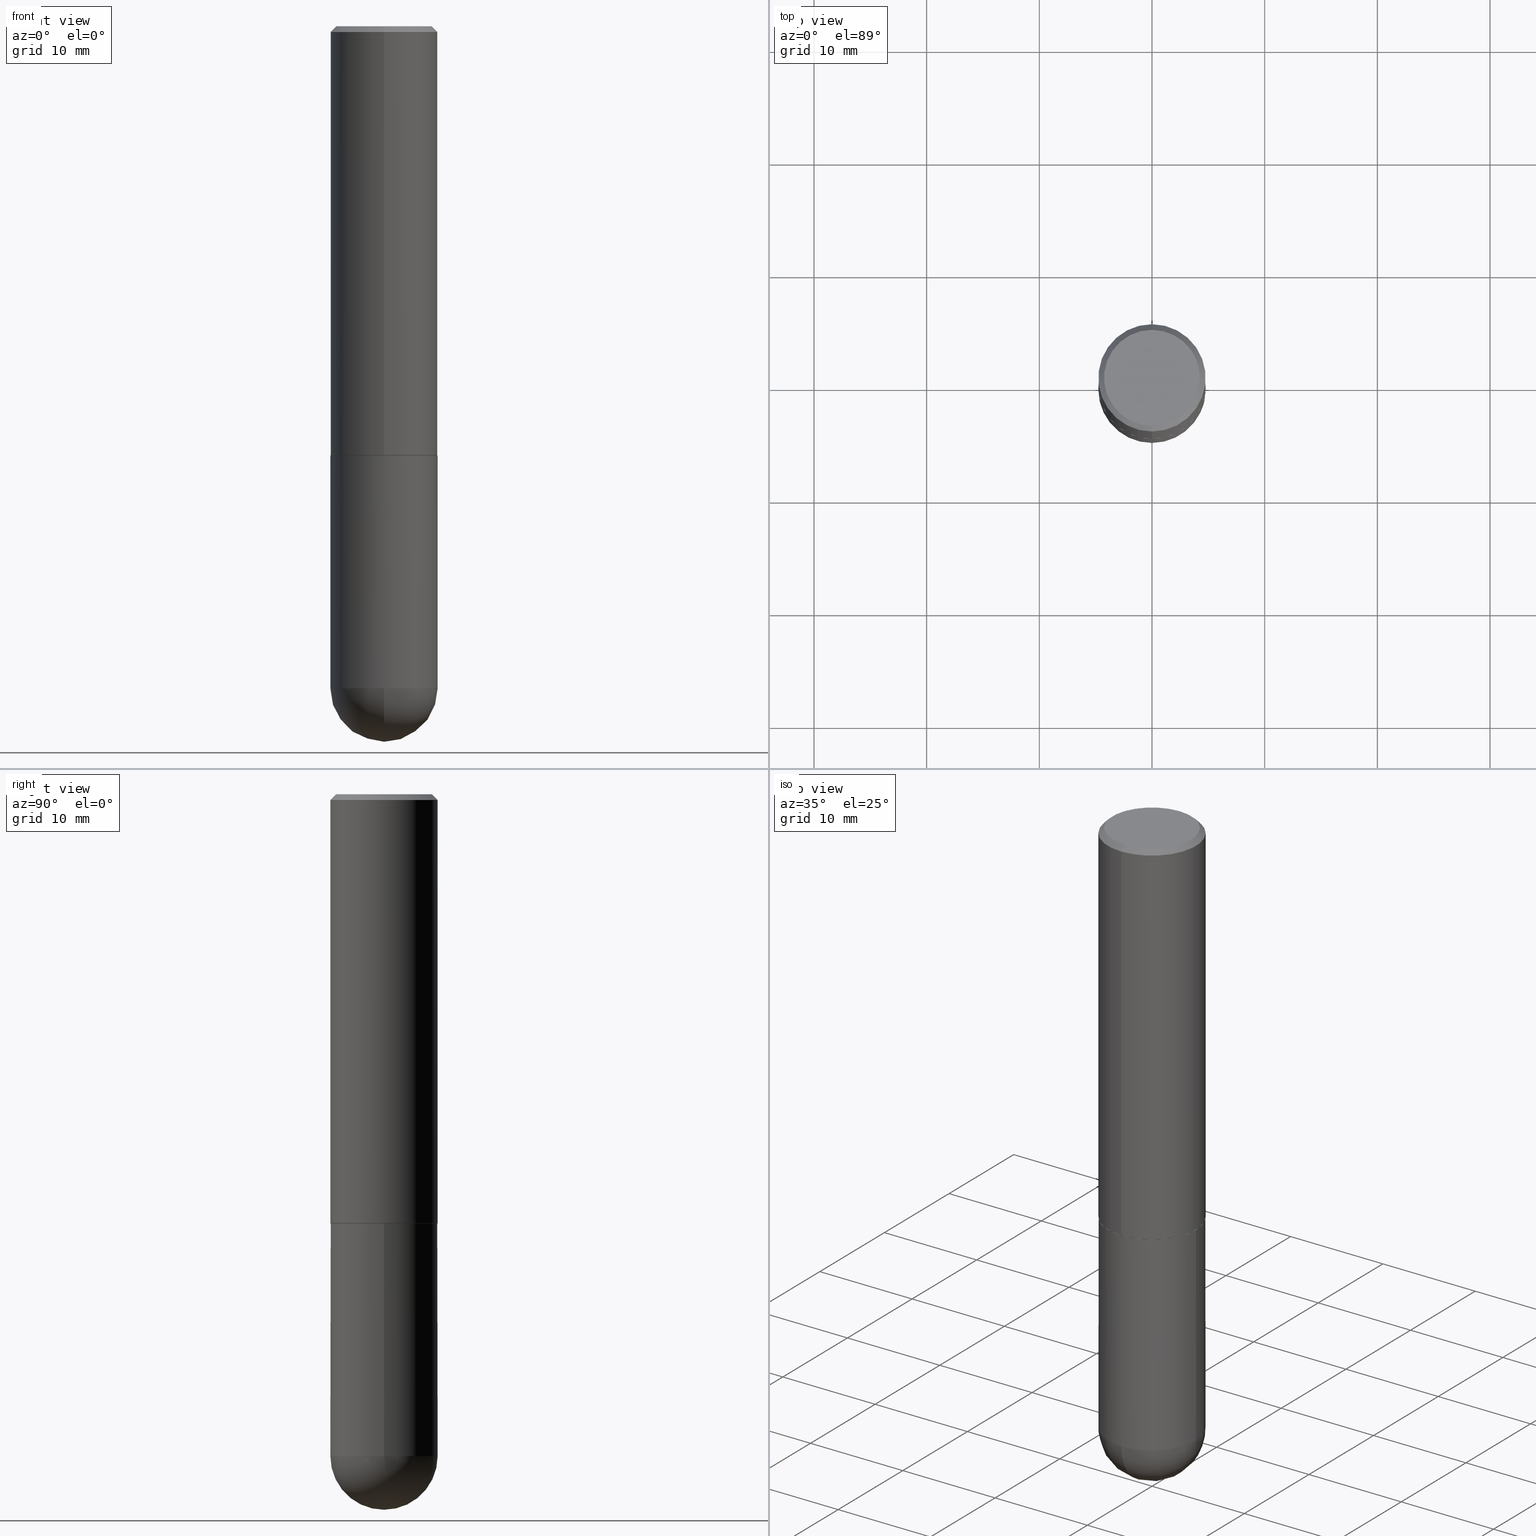
[diagram: canonical four-view strip — front | top / right | iso, engineering-drawing reading convention]
A machine part, canonical four-view strip (front | top / right | iso — engineering-drawing reading convention). The complete STEP part file that produces these views, byte-faithful:
ISO-10303-21;
HEADER;
FILE_DESCRIPTION (( 'STEP AP203' ),
    '1' );
FILE_NAME ('91289.STEP',
    '2024-04-10T12:36:36',
    ( '' ),
    ( '' ),
    'SwSTEP 2.0',
    'SolidWorks 2023',
    '' );
FILE_SCHEMA (( 'CONFIG_CONTROL_DESIGN' ));
ENDSEC;

DATA;
#1 = ORIENTED_EDGE ( 'NONE', *, *, #396, .F. ) ;
#2 = PRODUCT_DEFINITION_SHAPE ( 'NONE', 'NONE',  #55 ) ;
#3 = VERTEX_POINT ( 'NONE', #120 ) ;
#4 = DIRECTION ( 'NONE',  ( 2.446325823282040741E-29, -3.490254041581994604E-15, -1.000000000000000000 ) ) ;
#5 = AXIS2_PLACEMENT_3D ( 'NONE', #335, #275, #401 ) ;
#6 = APPROVAL_DATE_TIME ( #262, #304 ) ;
#7 = ORIENTED_EDGE ( 'NONE', *, *, #96, .F. ) ;
#8 = FACE_OUTER_BOUND ( 'NONE', #25, .T. ) ;
#9 = PRODUCT ( '91289', '91289', '', ( #23 ) ) ;
#10 = DATE_AND_TIME ( #289, #161 ) ;
#11 = EDGE_LOOP ( 'NONE', ( #286, #348, #318, #37, #40 ) ) ;
#12 = EDGE_CURVE ( 'NONE', #157, #142, #246, .T. ) ;
#13 = VECTOR ( 'NONE', #284, 39.37007874015748143 ) ;
#14 = FACE_OUTER_BOUND ( 'NONE', #386, .T. ) ;
#15 = DIRECTION ( 'NONE',  ( -6.982962677686265922E-15, -1.000000000000000000, 2.913971193241877611E-15 ) ) ;
#16 = FACE_OUTER_BOUND ( 'NONE', #186, .T. ) ;
#17 = CC_DESIGN_PERSON_AND_ORGANIZATION_ASSIGNMENT ( #156, #276, ( #314 ) ) ;
#18 = ORIENTED_EDGE ( 'NONE', *, *, #312, .F. ) ;
#19 = CARTESIAN_POINT ( 'NONE',  ( 5.655146614303128380E-29, -8.074050596074775072E-15, -2.312500000000000000 ) ) ;
#20 = VECTOR ( 'NONE', #256, 39.37007874015748143 ) ;
#21 = EDGE_CURVE ( 'NONE', #3, #230, #338, .T. ) ;
#22 = DIRECTION ( 'NONE',  ( -2.446325823282041021E-29, 3.490254041581994604E-15, 1.000000000000000000 ) ) ;
#23 = MECHANICAL_CONTEXT ( 'NONE', #405, 'mechanical' ) ;
#24 = SECURITY_CLASSIFICATION_LEVEL ( 'unclassified' ) ;
#25 = EDGE_LOOP ( 'NONE', ( #29, #45, #319, #261 ) ) ;
#26 = CARTESIAN_POINT ( 'NONE',  ( 0.000000000000000000, 0.000000000000000000, 0.000000000000000000 ) ) ;
#27 = DIRECTION ( 'NONE',  ( -2.446325823282041021E-29, 3.490254041581994604E-15, 1.000000000000000000 ) ) ;
#28 =( NAMED_UNIT ( * ) SI_UNIT ( $, .STERADIAN. ) SOLID_ANGLE_UNIT ( ) );
#29 = ORIENTED_EDGE ( 'NONE', *, *, #225, .F. ) ;
#30 = APPROVAL_DATE_TIME ( #149, #294 ) ;
#31 = CARTESIAN_POINT ( 'NONE',  ( 0.000000000000000000, 0.000000000000000000, 0.000000000000000000 ) ) ;
#32 = VERTEX_POINT ( 'NONE', #101 ) ;
#33 = AXIS2_PLACEMENT_3D ( 'NONE', #372, #89, #215 ) ;
#34 = EDGE_CURVE ( 'NONE', #230, #157, #331, .T. ) ;
#35 = ADVANCED_FACE ( 'NONE', ( #277 ), #376, .T. ) ;
#36 = EDGE_CURVE ( 'NONE', #78, #235, #169, .T. ) ;
#37 = ORIENTED_EDGE ( 'NONE', *, *, #266, .F. ) ;
#38 = PERSON ( 'UNSPECIFIED', 'UNSPECIFIED', 'UNSPECIFIED', ('UNSPECIFIED'), ('UNSPECIFIED'), ('UNSPECIFIED') ) ;
#39 = DIRECTION ( 'NONE',  ( -6.982962677686265922E-15, -1.000000000000000000, 2.929595703661408850E-15 ) ) ;
#40 = ORIENTED_EDGE ( 'NONE', *, *, #181, .T. ) ;
#41 = ORIENTED_EDGE ( 'NONE', *, *, #225, .T. ) ;
#42 = AXIS2_PLACEMENT_3D ( 'NONE', #121, #212, #366 ) ;
#43 = AXIS2_PLACEMENT_3D ( 'NONE', #99, #223, #211 ) ;
#44 = SHAPE_DEFINITION_REPRESENTATION ( #2, #184 ) ;
#45 = ORIENTED_EDGE ( 'NONE', *, *, #85, .T. ) ;
#46 = DIRECTION ( 'NONE',  ( -6.982962677686266711E-15, -1.000000000000000000, 3.483106191921935949E-15 ) ) ;
#47 = EDGE_CURVE ( 'NONE', #293, #97, #222, .T. ) ;
#48 = DIRECTION ( 'NONE',  ( -2.445468806185136597E-29, 3.491481338843145583E-15, 1.000000000000000000 ) ) ;
#49 = CARTESIAN_POINT ( 'NONE',  ( 1.169646248512449398E-15, 0.1674999999999999545, -5.740490568853542942E-16 ) ) ;
#50 = AXIS2_PLACEMENT_3D ( 'NONE', #191, #105, #206 ) ;
#51 = CONICAL_SURFACE ( 'NONE', #125, 0.1874999999999999722, 0.7853981633974473908 ) ;
#52 = DIRECTION ( 'NONE',  ( -2.446325823282041021E-29, 3.490254041581994604E-15, 1.000000000000000000 ) ) ;
#53 = MANIFOLD_SOLID_BREP ( 'Body-Move/Copy2[2]', #132 ) ;
#54 = MANIFOLD_SOLID_BREP ( 'Body-Move/Copy2[1]', #359 ) ;
#55 = PRODUCT_DEFINITION ( 'UNKNOWN', '', #148, #167 ) ;
#56 = CIRCLE ( 'NONE', #307, 0.1875000000000000555 ) ;
#57 = DIRECTION ( 'NONE',  ( -2.445468806185136877E-29, 3.491481338843145188E-15, 1.000000000000000000 ) ) ;
#58 = DIRECTION ( 'NONE',  ( 5.024295867787719235E-15, 0.7071067811865017205, 0.7071067811865933139 ) ) ;
#59 = EDGE_CURVE ( 'NONE', #230, #3, #320, .T. ) ;
#60 = PERSON_AND_ORGANIZATION ( #38, #116 ) ;
#61 = CARTESIAN_POINT ( 'NONE',  ( 0.000000000000000000, 0.000000000000000000, 0.000000000000000000 ) ) ;
#62 = DIRECTION ( 'NONE',  ( -6.982962677686266711E-15, -1.000000000000000000, 3.490254041581994210E-15 ) ) ;
#63 = DIRECTION ( 'NONE',  ( -6.982962677686266711E-15, -1.000000000000000000, 3.490254041581994210E-15 ) ) ;
#64 = VERTEX_POINT ( 'NONE', #302 ) ;
#65 = CIRCLE ( 'NONE', #119, 0.1674999999999999545 ) ;
#66 = CARTESIAN_POINT ( 'NONE',  ( -1.286343374582161379E-15, -0.1875000000000000555, -0.01999999999999938979 ) ) ;
#67 = COORDINATED_UNIVERSAL_TIME_OFFSET ( 5, 0, .BEHIND. ) ;
#68 = EDGE_LOOP ( 'NONE', ( #18, #258, #106, #109 ) ) ;
#69 = DIRECTION ( 'NONE',  ( -2.446325823282041021E-29, 3.490254041581994604E-15, 1.000000000000000000 ) ) ;
#70 = DIRECTION ( 'NONE',  ( 4.937700262164543309E-15, 0.7071067811865444641, -0.7071067811865506814 ) ) ;
#71 = CC_DESIGN_DATE_AND_TIME_ASSIGNMENT ( #10, #140, ( #314 ) ) ;
#72 = CARTESIAN_POINT ( 'NONE',  ( 0.1875000000000000555, -1.309305502066175205E-15, 9.142831454617382414E-30 ) ) ;
#73 = PERSON_AND_ORGANIZATION ( #38, #116 ) ;
#74 = ORIENTED_EDGE ( 'NONE', *, *, #96, .T. ) ;
#75 = CARTESIAN_POINT ( 'NONE',  ( -5.170796485305438754E-46, 7.377346533023360071E-32, 2.113699015925929127E-17 ) ) ;
#76 = VECTOR ( 'NONE', #70, 39.37007874015748143 ) ;
#77 = CARTESIAN_POINT ( 'NONE',  ( 4.892651646564092307E-31, -6.980508083164003605E-17, -0.02000000000000004205 ) ) ;
#78 = VERTEX_POINT ( 'NONE', #159 ) ;
#79 = ORIENTED_EDGE ( 'NONE', *, *, #181, .F. ) ;
#80 = DIRECTION ( 'NONE',  ( 6.982962677686266711E-15, 1.000000000000000000, -2.913971193241875639E-15 ) ) ;
#81 = EDGE_LOOP ( 'NONE', ( #7, #264, #288, #255 ) ) ;
#82 = AXIS2_PLACEMENT_3D ( 'NONE', #295, #252, #392 ) ;
#83 = CIRCLE ( 'NONE', #100, 0.1875000000000000555 ) ;
#84 = ORIENTED_EDGE ( 'NONE', *, *, #330, .T. ) ;
#85 = EDGE_CURVE ( 'NONE', #32, #235, #337, .T. ) ;
#86 = CC_DESIGN_PERSON_AND_ORGANIZATION_ASSIGNMENT ( #60, #127, ( #148 ) ) ;
#87 = CARTESIAN_POINT ( 'NONE',  ( -1.309305502066139509E-15, -0.1875000000000054123, -1.498999999999999444 ) ) ;
#88 = APPROVAL_ROLE ( '' ) ;
#89 = DIRECTION ( 'NONE',  ( -2.446325823282041021E-29, 3.490254041581994604E-15, 1.000000000000000000 ) ) ;
#90 = CC_DESIGN_APPROVAL ( #253, ( #148 ) ) ;
#91 = CARTESIAN_POINT ( 'NONE',  ( -0.1875000000000000555, 1.332267629550188243E-15, -9.223003294227950793E-30 ) ) ;
#92 = DIRECTION ( 'NONE',  ( -6.982962677686265922E-15, -1.000000000000000000, 2.929595703661408850E-15 ) ) ;
#93 = CARTESIAN_POINT ( 'NONE',  ( 5.324026836389243254E-29, -8.548232964214825368E-15, -2.312500000000000000 ) ) ;
#94 = DATE_TIME_ROLE ( 'creation_date' ) ;
#95 = DIRECTION ( 'NONE',  ( -6.982962677686265922E-15, -1.000000000000000000, 2.929595703661408850E-15 ) ) ;
#96 = EDGE_CURVE ( 'NONE', #3, #142, #282, .T. ) ;
#97 = VERTEX_POINT ( 'NONE', #224 ) ;
#98 = CARTESIAN_POINT ( 'NONE',  ( 1.309305502066175205E-15, 0.1874999999999999167, -0.02000000000000069431 ) ) ;
#99 = CARTESIAN_POINT ( 'NONE',  ( 0.000000000000000000, 0.000000000000000000, 0.000000000000000000 ) ) ;
#100 = AXIS2_PLACEMENT_3D ( 'NONE', #317, #48, #242 ) ;
#101 = CARTESIAN_POINT ( 'NONE',  ( -1.217738394604446442E-15, -0.1674999999999999545, 6.057545421242431695E-16 ) ) ;
#102 = EDGE_CURVE ( 'NONE', #361, #32, #259, .T. ) ;
#103 = DIRECTION ( 'NONE',  ( -2.445468806185136597E-29, 3.491481338843145583E-15, 1.000000000000000000 ) ) ;
#104 = ORIENTED_EDGE ( 'NONE', *, *, #345, .T. ) ;
#105 = DIRECTION ( 'NONE',  ( -2.445468806185136597E-29, 3.491481338843145583E-15, 1.000000000000000000 ) ) ;
#106 = ORIENTED_EDGE ( 'NONE', *, *, #143, .T. ) ;
#107 = AXIS2_PLACEMENT_3D ( 'NONE', #357, #352, #80 ) ;
#108 = AXIS2_PLACEMENT_3D ( 'NONE', #93, #216, #154 ) ;
#109 = ORIENTED_EDGE ( 'NONE', *, *, #36, .F. ) ;
#110 = ORIENTED_EDGE ( 'NONE', *, *, #102, .T. ) ;
#111 = APPLICATION_CONTEXT ( 'configuration controlled 3d designs of mechanical parts and assemblies' ) ;
#112 = DIRECTION ( 'NONE',  ( 6.982962677686266711E-15, 1.000000000000000000, -3.483106191921935949E-15 ) ) ;
#113 = ADVANCED_FACE ( 'NONE', ( #130 ), #265, .T. ) ;
#114 = ORIENTED_EDGE ( 'NONE', *, *, #312, .T. ) ;
#115 = VECTOR ( 'NONE', #248, 39.37007874015748143 ) ;
#116 = ORGANIZATION ( 'UNSPECIFIED', 'UNSPECIFIED', '' ) ;
#117 = FACE_OUTER_BOUND ( 'NONE', #232, .T. ) ;
#118 = CYLINDRICAL_SURFACE ( 'NONE', #208, 0.1875000000000000833 ) ;
#119 = AXIS2_PLACEMENT_3D ( 'NONE', #75, #324, #173 ) ;
#120 = CARTESIAN_POINT ( 'NONE',  ( 1.328714915871423829E-15, 0.1864999999999947533, -1.500000000000000888 ) ) ;
#121 = CARTESIAN_POINT ( 'NONE',  ( 3.668203209277704895E-29, -5.237222008264718177E-15, -1.500000000000000222 ) ) ;
#122 = APPROVAL_DATE_TIME ( #249, #253 ) ;
#123 = CARTESIAN_POINT ( 'NONE',  ( 1.309305502066231017E-15, 0.1874999999999918954, -2.312500000000000444 ) ) ;
#124 = ADVANCED_FACE ( 'NONE', ( #398 ), #245, .T. ) ;
#125 = AXIS2_PLACEMENT_3D ( 'NONE', #77, #387, #112 ) ;
#126 = APPLICATION_PROTOCOL_DEFINITION ( 'international standard', 'config_control_design', 1994, #111 ) ;
#127 = PERSON_AND_ORGANIZATION_ROLE ( 'design_supplier' ) ;
#128 = FACE_OUTER_BOUND ( 'NONE', #163, .T. ) ;
#129 = LENGTH_MEASURE_WITH_UNIT ( LENGTH_MEASURE( 0.02539999999999999897 ), #152 );
#130 = FACE_OUTER_BOUND ( 'NONE', #194, .T. ) ;
#131 = PLANE ( 'NONE',  #236 ) ;
#132 = CLOSED_SHELL ( 'NONE', ( #113, #300, #323, #234, #35, #204, #172, #195 ) ) ;
#133 = CONICAL_SURFACE ( 'NONE', #360, 0.1864999999999999714, 0.7853981633973801113 ) ;
#134 = ORIENTED_EDGE ( 'NONE', *, *, #280, .F. ) ;
#135 = CARTESIAN_POINT ( 'NONE',  ( 3.669488734923062093E-29, -5.235381062372993089E-15, -1.500000000000000444 ) ) ;
#136 = ORIENTED_EDGE ( 'NONE', *, *, #12, .F. ) ;
#137 = ORIENTED_EDGE ( 'NONE', *, *, #367, .T. ) ;
#138 = CC_DESIGN_PERSON_AND_ORGANIZATION_ASSIGNMENT ( #247, #188, ( #55 ) ) ;
#139 = LOCAL_TIME ( 8, 36, 36.00000000000000000, #67 ) ;
#140 = DATE_TIME_ROLE ( 'classification_date' ) ;
#141 = EDGE_LOOP ( 'NONE', ( #171, #342 ) ) ;
#142 = VERTEX_POINT ( 'NONE', #187 ) ;
#143 = EDGE_CURVE ( 'NONE', #157, #235, #406, .T. ) ;
#144 = AXIS2_PLACEMENT_3D ( 'NONE', #231, #52, #146 ) ;
#145 = CARTESIAN_POINT ( 'NONE',  ( 5.655146614303128380E-29, -8.074050596074775072E-15, -2.312500000000000000 ) ) ;
#146 = DIRECTION ( 'NONE',  ( -6.982962677686265922E-15, -1.000000000000000000, 2.913971193241877611E-15 ) ) ;
#147 = CARTESIAN_POINT ( 'NONE',  ( 5.324026836389243254E-29, -8.548232964214825368E-15, -2.312500000000000000 ) ) ;
#148 = PRODUCT_DEFINITION_FORMATION_WITH_SPECIFIED_SOURCE ( 'ANY', '', #9, .NOT_KNOWN. ) ;
#149 = DATE_AND_TIME ( #217, #299 ) ;
#150 = DIRECTION ( 'NONE',  ( -6.982962677686265922E-15, -1.000000000000000000, 2.929595703661408850E-15 ) ) ;
#151 = ADVANCED_FACE ( 'NONE', ( #343 ), #306, .T. ) ;
#152 =( LENGTH_UNIT ( ) NAMED_UNIT ( * ) SI_UNIT ( $, .METRE. ) );
#153 = CARTESIAN_POINT ( 'NONE',  ( -1.309305502066175600E-15, -0.1875000000000000833, 6.544226327966242348E-16 ) ) ;
#154 = DIRECTION ( 'NONE',  ( 6.982962677686265922E-15, 1.000000000000000000, 0.000000000000000000 ) ) ;
#155 = APPROVAL_PERSON_ORGANIZATION ( #73, #304, #162 ) ;
#156 = PERSON_AND_ORGANIZATION ( #38, #116 ) ;
#157 = VERTEX_POINT ( 'NONE', #87 ) ;
#158 = DIRECTION ( 'NONE',  ( -2.446325823282041021E-29, 3.490254041581994604E-15, 1.000000000000000000 ) ) ;
#159 = CARTESIAN_POINT ( 'NONE',  ( 1.309305502066175205E-15, 0.1874999999999999167, -0.02000000000000069431 ) ) ;
#160 = AXIS2_PLACEMENT_3D ( 'NONE', #309, #218, #179 ) ;
#161 = LOCAL_TIME ( 8, 36, 36.00000000000000000, #336 ) ;
#162 = APPROVAL_ROLE ( '' ) ;
#163 = EDGE_LOOP ( 'NONE', ( #380, #196 ) ) ;
#164 = FACE_OUTER_BOUND ( 'NONE', #141, .T. ) ;
#165 = ORIENTED_EDGE ( 'NONE', *, *, #330, .F. ) ;
#166 = ORIENTED_EDGE ( 'NONE', *, *, #389, .F. ) ;
#167 = DESIGN_CONTEXT ( 'detailed design', #111, 'design' ) ;
#168 = ORIENTED_EDGE ( 'NONE', *, *, #353, .T. ) ;
#169 = CIRCLE ( 'NONE', #160, 0.1874999999999999722 ) ;
#170 = CC_DESIGN_SECURITY_CLASSIFICATION ( #314, ( #148 ) ) ;
#171 = ORIENTED_EDGE ( 'NONE', *, *, #59, .F. ) ;
#172 = ADVANCED_FACE ( 'NONE', ( #164 ), #382, .F. ) ;
#173 = DIRECTION ( 'NONE',  ( -6.982962677686266711E-15, -1.000000000000000000, 3.490254041581994210E-15 ) ) ;
#174 = APPROVAL_PERSON_ORGANIZATION ( #310, #253, #88 ) ;
#175 = SPHERICAL_SURFACE ( 'NONE', #291, 0.1875000000000003331 ) ;
#176 = CARTESIAN_POINT ( 'NONE',  ( 0.1875000000000000278, -6.546527510330893974E-15, -1.500000000000000222 ) ) ;
#177 = LINE ( 'NONE', #72, #20 ) ;
#178 = DIRECTION ( 'NONE',  ( -1.000000000000000000, 6.982962677686266711E-15, -4.883557194083113462E-29 ) ) ;
#179 = DIRECTION ( 'NONE',  ( -6.982962677686266711E-15, -1.000000000000000000, 3.483106191921935949E-15 ) ) ;
#180 = FACE_OUTER_BOUND ( 'NONE', #199, .T. ) ;
#181 = EDGE_CURVE ( 'NONE', #410, #290, #228, .T. ) ;
#182 =( NAMED_UNIT ( * ) PLANE_ANGLE_UNIT ( ) SI_UNIT ( $, .RADIAN. ) );
#183 = DIRECTION ( 'NONE',  ( -2.445468806185136597E-29, 3.491481338843145583E-15, 1.000000000000000000 ) ) ;
#184 = ADVANCED_BREP_SHAPE_REPRESENTATION ( '91289', ( #54, #53, #43 ), #285 ) ;
#185 = COORDINATED_UNIVERSAL_TIME_OFFSET ( 5, 0, .BEHIND. ) ;
#186 = EDGE_LOOP ( 'NONE', ( #189, #114, #1, #263 ) ) ;
#187 = CARTESIAN_POINT ( 'NONE',  ( 1.332267629550206781E-15, 0.1874999999999949485, -1.499000000000000554 ) ) ;
#188 = PERSON_AND_ORGANIZATION_ROLE ( 'creator' ) ;
#189 = ORIENTED_EDGE ( 'NONE', *, *, #12, .T. ) ;
#190 = DIRECTION ( 'NONE',  ( 2.438088387897960049E-29, -3.491481338843145188E-15, -1.000000000000000000 ) ) ;
#191 = CARTESIAN_POINT ( 'NONE',  ( 5.655146614303128380E-29, -8.074050596074775072E-15, -2.312500000000000000 ) ) ;
#192 = AXIS2_PLACEMENT_3D ( 'NONE', #272, #158, #92 ) ;
#193 = CIRCLE ( 'NONE', #326, 0.1874999999999999722 ) ;
#194 = EDGE_LOOP ( 'NONE', ( #315, #74, #136, #203 ) ) ;
#195 = ADVANCED_FACE ( 'NONE', ( #117 ), #316, .F. ) ;
#196 = ORIENTED_EDGE ( 'NONE', *, *, #280, .T. ) ;
#197 = ADVANCED_FACE ( 'NONE', ( #227 ), #238, .T. ) ;
#198 = ORIENTED_EDGE ( 'NONE', *, *, #36, .T. ) ;
#199 = EDGE_LOOP ( 'NONE', ( #226, #381, #79, #292 ) ) ;
#200 = VECTOR ( 'NONE', #271, 39.37007874015748143 ) ;
#201 = DIRECTION ( 'NONE',  ( -2.446325823282041021E-29, 3.490254041581994604E-15, 1.000000000000000000 ) ) ;
#202 = CIRCLE ( 'NONE', #5, 0.1875000000000000278 ) ;
#203 = ORIENTED_EDGE ( 'NONE', *, *, #34, .F. ) ;
#204 = ADVANCED_FACE ( 'NONE', ( #349 ), #133, .T. ) ;
#205 = DIRECTION ( 'NONE',  ( -2.446325823282041021E-29, 3.490254041581994604E-15, 1.000000000000000000 ) ) ;
#206 = DIRECTION ( 'NONE',  ( 1.000000000000000000, -6.982962677686270655E-15, 0.000000000000000000 ) ) ;
#207 = VECTOR ( 'NONE', #58, 39.37007874015748143 ) ;
#208 = AXIS2_PLACEMENT_3D ( 'NONE', #287, #27, #62 ) ;
#209 = EDGE_CURVE ( 'NONE', #142, #157, #378, .T. ) ;
#210 = CC_DESIGN_DATE_AND_TIME_ASSIGNMENT ( #371, #94, ( #55 ) ) ;
#211 = DIRECTION ( 'NONE',  ( 1.000000000000000000, 0.000000000000000000, 0.000000000000000000 ) ) ;
#212 = DIRECTION ( 'NONE',  ( -2.445468806185136597E-29, 3.491481338843145583E-15, 1.000000000000000000 ) ) ;
#213 = CARTESIAN_POINT ( 'NONE',  ( 5.324026836389243254E-29, -8.548232964214825368E-15, -2.312500000000000000 ) ) ;
#214 = CIRCLE ( 'NONE', #108, 0.1875000000000003331 ) ;
#215 = DIRECTION ( 'NONE',  ( -6.982962677686266711E-15, -1.000000000000000000, 3.490254041581994210E-15 ) ) ;
#216 = DIRECTION ( 'NONE',  ( 1.000000000000000000, -6.982962677686265922E-15, 4.883557194083112340E-29 ) ) ;
#217 = CALENDAR_DATE ( 2024, 10, 4 ) ;
#218 = DIRECTION ( 'NONE',  ( -2.446325823282041021E-29, 3.490254041581994604E-15, 1.000000000000000000 ) ) ;
#219 = PERSON_AND_ORGANIZATION ( #38, #116 ) ;
#220 = ORIENTED_EDGE ( 'NONE', *, *, #283, .F. ) ;
#221 = CARTESIAN_POINT ( 'NONE',  ( 3.669488734923062093E-29, -5.235381062372993089E-15, -1.500000000000000444 ) ) ;
#222 = CIRCLE ( 'NONE', #42, 0.1875000000000000278 ) ;
#223 = DIRECTION ( 'NONE',  ( 0.000000000000000000, 0.000000000000000000, 1.000000000000000000 ) ) ;
#224 = CARTESIAN_POINT ( 'NONE',  ( -0.1875000000000000278, -5.323368672619557593E-15, -1.500000000000000222 ) ) ;
#225 = EDGE_CURVE ( 'NONE', #32, #361, #65, .T. ) ;
#226 = ORIENTED_EDGE ( 'NONE', *, *, #353, .F. ) ;
#227 = FACE_OUTER_BOUND ( 'NONE', #233, .T. ) ;
#228 = CIRCLE ( 'NONE', #50, 0.1875000000000000555 ) ;
#229 = CC_DESIGN_APPROVAL ( #304, ( #314 ) ) ;
#230 = VERTEX_POINT ( 'NONE', #411 ) ;
#231 = CARTESIAN_POINT ( 'NONE',  ( 3.667042409099778861E-29, -5.231890808331411425E-15, -1.499000000000000110 ) ) ;
#232 = EDGE_LOOP ( 'NONE', ( #110, #41 ) ) ;
#233 = EDGE_LOOP ( 'NONE', ( #166, #168, #165, #220 ) ) ;
#234 = ADVANCED_FACE ( 'NONE', ( #14 ), #409, .T. ) ;
#235 = VERTEX_POINT ( 'NONE', #325 ) ;
#236 = AXIS2_PLACEMENT_3D ( 'NONE', #340, #190, #251 ) ;
#237 = DIRECTION ( 'NONE',  ( 6.982962677686266711E-15, 1.000000000000000000, -2.913971193241875639E-15 ) ) ;
#238 = SPHERICAL_SURFACE ( 'NONE', #107, 0.1875000000000003331 ) ;
#239 = CC_DESIGN_PERSON_AND_ORGANIZATION_ASSIGNMENT ( #365, #308, ( #9 ) ) ;
#240 = DIRECTION ( 'NONE',  ( -2.445468806185136597E-29, 3.491481338843145583E-15, 1.000000000000000000 ) ) ;
#241 = CIRCLE ( 'NONE', #339, 0.1875000000000003331 ) ;
#242 = DIRECTION ( 'NONE',  ( 1.000000000000000000, -6.982962677686270655E-15, 0.000000000000000000 ) ) ;
#243 = CARTESIAN_POINT ( 'NONE',  ( 3.667042409099778861E-29, -5.231890808331411425E-15, -1.499000000000000110 ) ) ;
#244 = PRODUCT_RELATED_PRODUCT_CATEGORY ( 'detail', '', ( #9 ) ) ;
#245 = CYLINDRICAL_SURFACE ( 'NONE', #298, 0.1875000000000000555 ) ;
#246 = CIRCLE ( 'NONE', #377, 0.1875000000000001943 ) ;
#247 = PERSON_AND_ORGANIZATION ( #38, #116 ) ;
#248 = DIRECTION ( 'NONE',  ( -4.937700262164211199E-15, -0.7071067811864968355, 0.7071067811865981989 ) ) ;
#249 = DATE_AND_TIME ( #305, #400 ) ;
#250 = DIRECTION ( 'NONE',  ( -2.446325823282041302E-29, 3.490254041581994604E-15, 1.000000000000000000 ) ) ;
#251 = DIRECTION ( 'NONE',  ( -1.000000000000000000, 6.982962677686265922E-15, -4.876176775795935793E-29 ) ) ;
#252 = DIRECTION ( 'NONE',  ( -2.446325823282040741E-29, 3.490254041581994604E-15, 1.000000000000000000 ) ) ;
#253 = APPROVAL ( #332, 'UNSPECIFIED' ) ;
#254 = DIMENSIONAL_EXPONENTS ( 1.000000000000000000, 0.000000000000000000, 0.000000000000000000, 0.000000000000000000, 0.000000000000000000, 0.000000000000000000, 0.000000000000000000 ) ;
#255 = ORIENTED_EDGE ( 'NONE', *, *, #209, .F. ) ;
#256 = DIRECTION ( 'NONE',  ( -2.445468806185136877E-29, 3.491481338843145188E-15, 1.000000000000000000 ) ) ;
#257 = COORDINATED_UNIVERSAL_TIME_OFFSET ( 5, 0, .BEHIND. ) ;
#258 = ORIENTED_EDGE ( 'NONE', *, *, #209, .T. ) ;
#259 = CIRCLE ( 'NONE', #33, 0.1674999999999999545 ) ;
#260 = LOCAL_TIME ( 8, 36, 36.00000000000000000, #257 ) ;
#261 = ORIENTED_EDGE ( 'NONE', *, *, #367, .F. ) ;
#262 = DATE_AND_TIME ( #355, #260 ) ;
#263 = ORIENTED_EDGE ( 'NONE', *, *, #143, .F. ) ;
#264 = ORIENTED_EDGE ( 'NONE', *, *, #21, .T. ) ;
#265 = CONICAL_SURFACE ( 'NONE', #383, 0.1864999999999999714, 0.7853981633973801113 ) ;
#266 = EDGE_CURVE ( 'NONE', #410, #293, #177, .T. ) ;
#267 = CARTESIAN_POINT ( 'NONE',  ( 4.892651646564092307E-31, -6.980508083164003605E-17, -0.02000000000000004205 ) ) ;
#268 = DIRECTION ( 'NONE',  ( -7.105427357600999492E-15, -1.000000000000000000, 0.000000000000000000 ) ) ;
#269 = AXIS2_PLACEMENT_3D ( 'NONE', #221, #69, #95 ) ;
#270 = CIRCLE ( 'NONE', #369, 0.1875000000000000555 ) ;
#271 = DIRECTION ( 'NONE',  ( -4.851104656540959542E-15, -0.7071067811865493491, -0.7071067811865457964 ) ) ;
#272 = CARTESIAN_POINT ( 'NONE',  ( 3.669488734923062093E-29, -5.235381062372993089E-15, -1.500000000000000444 ) ) ;
#273 = CARTESIAN_POINT ( 'NONE',  ( 4.892651646564092307E-31, -6.980508083164003605E-17, -0.02000000000000004205 ) ) ;
#274 = AXIS2_PLACEMENT_3D ( 'NONE', #49, #4, #346 ) ;
#275 = DIRECTION ( 'NONE',  ( -2.445468806185136597E-29, 3.491481338843145583E-15, 1.000000000000000000 ) ) ;
#276 = PERSON_AND_ORGANIZATION_ROLE ( 'classification_officer' ) ;
#277 = FACE_OUTER_BOUND ( 'NONE', #68, .T. ) ;
#278 = APPLICATION_PROTOCOL_DEFINITION ( 'international standard', 'config_control_design', 1994, #405 ) ;
#279 = CARTESIAN_POINT ( 'NONE',  ( 3.669488734923062093E-29, -5.235381062372993089E-15, -1.500000000000000444 ) ) ;
#280 = EDGE_CURVE ( 'NONE', #97, #293, #202, .T. ) ;
#281 = VERTEX_POINT ( 'NONE', #354 ) ;
#282 = LINE ( 'NONE', #403, #207 ) ;
#283 = EDGE_CURVE ( 'NONE', #290, #64, #270, .T. ) ;
#284 = DIRECTION ( 'NONE',  ( -2.446325823282041302E-29, 3.490254041581994604E-15, 1.000000000000000000 ) ) ;
#285 =( GEOMETRIC_REPRESENTATION_CONTEXT ( 3 ) GLOBAL_UNCERTAINTY_ASSIGNED_CONTEXT ( ( #375 ) ) GLOBAL_UNIT_ASSIGNED_CONTEXT ( ( #341, #182, #28 ) ) REPRESENTATION_CONTEXT ( 'NONE', 'WORKASPACE' ) );
#286 = ORIENTED_EDGE ( 'NONE', *, *, #283, .T. ) ;
#287 = CARTESIAN_POINT ( 'NONE',  ( 0.000000000000000000, 0.000000000000000000, 0.000000000000000000 ) ) ;
#288 = ORIENTED_EDGE ( 'NONE', *, *, #34, .T. ) ;
#289 = CALENDAR_DATE ( 2024, 10, 4 ) ;
#290 = VERTEX_POINT ( 'NONE', #123 ) ;
#291 = AXIS2_PLACEMENT_3D ( 'NONE', #213, #178, #237 ) ;
#292 = ORIENTED_EDGE ( 'NONE', *, *, #345, .F. ) ;
#293 = VERTEX_POINT ( 'NONE', #176 ) ;
#294 = APPROVAL ( #373, 'UNSPECIFIED' ) ;
#295 = CARTESIAN_POINT ( 'NONE',  ( 3.669488734923062093E-29, -5.235381062372993089E-15, -1.500000000000000444 ) ) ;
#296 = CC_DESIGN_APPROVAL ( #294, ( #55 ) ) ;
#297 = AXIS2_PLACEMENT_3D ( 'NONE', #26, #103, #408 ) ;
#298 = AXIS2_PLACEMENT_3D ( 'NONE', #61, #183, #303 ) ;
#299 = LOCAL_TIME ( 8, 36, 36.00000000000000000, #397 ) ;
#300 = ADVANCED_FACE ( 'NONE', ( #16 ), #118, .T. ) ;
#301 = DIRECTION ( 'NONE',  ( -2.445468806185136597E-29, 3.491481338843145583E-15, 1.000000000000000000 ) ) ;
#302 = CARTESIAN_POINT ( 'NONE',  ( -0.1875000000000000555, -5.323368672619559170E-15, -2.312500000000000000 ) ) ;
#303 = DIRECTION ( 'NONE',  ( 1.000000000000000000, -6.982962677686265922E-15, 4.876176775795935793E-29 ) ) ;
#304 = APPROVAL ( #384, 'UNSPECIFIED' ) ;
#305 = CALENDAR_DATE ( 2024, 10, 4 ) ;
#306 = CYLINDRICAL_SURFACE ( 'NONE', #297, 0.1875000000000000555 ) ;
#307 = AXIS2_PLACEMENT_3D ( 'NONE', #145, #240, #393 ) ;
#308 = PERSON_AND_ORGANIZATION_ROLE ( 'design_owner' ) ;
#309 = CARTESIAN_POINT ( 'NONE',  ( 4.892651646564092307E-31, -6.980508083164003605E-17, -0.02000000000000004205 ) ) ;
#310 = PERSON_AND_ORGANIZATION ( #38, #116 ) ;
#311 = ADVANCED_FACE ( 'NONE', ( #128 ), #131, .F. ) ;
#312 = EDGE_CURVE ( 'NONE', #142, #78, #347, .T. ) ;
#313 = VECTOR ( 'NONE', #250, 39.37007874015748143 ) ;
#314 = SECURITY_CLASSIFICATION ( '', '', #24 ) ;
#315 = ORIENTED_EDGE ( 'NONE', *, *, #59, .T. ) ;
#316 = PLANE ( 'NONE',  #274 ) ;
#317 = CARTESIAN_POINT ( 'NONE',  ( 5.655146614303128380E-29, -8.074050596074775072E-15, -2.312500000000000000 ) ) ;
#318 = ORIENTED_EDGE ( 'NONE', *, *, #47, .F. ) ;
#319 = ORIENTED_EDGE ( 'NONE', *, *, #396, .T. ) ;
#320 = CIRCLE ( 'NONE', #269, 0.1864999999999999714 ) ;
#321 = ORIENTED_EDGE ( 'NONE', *, *, #266, .T. ) ;
#322 = CARTESIAN_POINT ( 'NONE',  ( 0.1875000000000000555, -7.964941804235924394E-15, -2.312500000000000000 ) ) ;
#323 = ADVANCED_FACE ( 'NONE', ( #8 ), #51, .T. ) ;
#324 = DIRECTION ( 'NONE',  ( -2.446325823282041021E-29, 3.490254041581994604E-15, 1.000000000000000000 ) ) ;
#325 = CARTESIAN_POINT ( 'NONE',  ( -1.286343374582161379E-15, -0.1875000000000000555, -0.01999999999999938979 ) ) ;
#326 = AXIS2_PLACEMENT_3D ( 'NONE', #273, #201, #46 ) ;
#327 = DIRECTION ( 'NONE',  ( -1.000000000000000000, 7.105427357601001070E-15, -4.926315508542082329E-29 ) ) ;
#328 = AXIS2_PLACEMENT_3D ( 'NONE', #31, #333, #63 ) ;
#329 = APPROVAL_PERSON_ORGANIZATION ( #402, #294, #404 ) ;
#330 = EDGE_CURVE ( 'NONE', #64, #385, #83, .T. ) ;
#331 = LINE ( 'NONE', #374, #115 ) ;
#332 = APPROVAL_STATUS ( 'not_yet_approved' ) ;
#333 = DIRECTION ( 'NONE',  ( -2.446325823282041021E-29, 3.490254041581994604E-15, 1.000000000000000000 ) ) ;
#334 = ADVANCED_FACE ( 'NONE', ( #180 ), #175, .T. ) ;
#335 = CARTESIAN_POINT ( 'NONE',  ( 3.668203209277704895E-29, -5.237222008264718177E-15, -1.500000000000000222 ) ) ;
#336 = COORDINATED_UNIVERSAL_TIME_OFFSET ( 5, 0, .BEHIND. ) ;
#337 = LINE ( 'NONE', #66, #200 ) ;
#338 = CIRCLE ( 'NONE', #192, 0.1864999999999999714 ) ;
#339 = AXIS2_PLACEMENT_3D ( 'NONE', #147, #327, #268 ) ;
#340 = CARTESIAN_POINT ( 'NONE',  ( 1.309305502066211690E-15, 0.1874999999999947820, -1.500000000000000666 ) ) ;
#341 =( CONVERSION_BASED_UNIT ( 'INCH', #129 ) LENGTH_UNIT ( ) NAMED_UNIT ( #254 ) );
#342 = ORIENTED_EDGE ( 'NONE', *, *, #21, .F. ) ;
#343 = FACE_OUTER_BOUND ( 'NONE', #358, .T. ) ;
#344 = CARTESIAN_POINT ( 'NONE',  ( 1.332267629550188243E-15, 0.1875000000000000833, -6.544226327966242348E-16 ) ) ;
#345 = EDGE_CURVE ( 'NONE', #385, #410, #56, .T. ) ;
#346 = DIRECTION ( 'NONE',  ( 6.982962677686265922E-15, 1.000000000000000000, -3.490254041581994604E-15 ) ) ;
#347 = LINE ( 'NONE', #344, #13 ) ;
#348 = ORIENTED_EDGE ( 'NONE', *, *, #412, .T. ) ;
#349 = FACE_OUTER_BOUND ( 'NONE', #81, .T. ) ;
#350 = VECTOR ( 'NONE', #57, 39.37007874015748143 ) ;
#351 = ORIENTED_EDGE ( 'NONE', *, *, #85, .F. ) ;
#352 = DIRECTION ( 'NONE',  ( -1.000000000000000000, 6.982962677686266711E-15, -4.883557194083113462E-29 ) ) ;
#353 = EDGE_CURVE ( 'NONE', #281, #385, #241, .T. ) ;
#354 = CARTESIAN_POINT ( 'NONE',  ( 5.790569421510013204E-29, -9.191404651505909607E-15, -2.500000000000000000 ) ) ;
#355 = CALENDAR_DATE ( 2024, 10, 4 ) ;
#356 = ORIENTED_EDGE ( 'NONE', *, *, #412, .F. ) ;
#357 = CARTESIAN_POINT ( 'NONE',  ( 5.324026836389243254E-29, -8.548232964214825368E-15, -2.312500000000000000 ) ) ;
#358 = EDGE_LOOP ( 'NONE', ( #356, #84, #104, #321, #134 ) ) ;
#359 = CLOSED_SHELL ( 'NONE', ( #124, #197, #334, #311, #151 ) ) ;
#360 = AXIS2_PLACEMENT_3D ( 'NONE', #135, #205, #39 ) ;
#361 = VERTEX_POINT ( 'NONE', #394 ) ;
#362 = DIRECTION ( 'NONE',  ( 6.982962677686266711E-15, 1.000000000000000000, -3.483106191921935949E-15 ) ) ;
#363 = LINE ( 'NONE', #98, #76 ) ;
#364 = DIRECTION ( 'NONE',  ( -2.446325823282041021E-29, 3.490254041581994604E-15, 1.000000000000000000 ) ) ;
#365 = PERSON_AND_ORGANIZATION ( #38, #116 ) ;
#366 = DIRECTION ( 'NONE',  ( 1.000000000000000000, -6.982962677686266711E-15, 0.000000000000000000 ) ) ;
#367 = EDGE_CURVE ( 'NONE', #361, #78, #363, .T. ) ;
#368 = PERSON_AND_ORGANIZATION_ROLE ( 'creator' ) ;
#369 = AXIS2_PLACEMENT_3D ( 'NONE', #19, #301, #399 ) ;
#370 = CARTESIAN_POINT ( 'NONE',  ( -1.332267629550134009E-15, -0.1875000000000084932, -2.312499999999999556 ) ) ;
#371 = DATE_AND_TIME ( #407, #139 ) ;
#372 = CARTESIAN_POINT ( 'NONE',  ( -5.170796485305438754E-46, 7.377346533023360071E-32, 2.113699015925929127E-17 ) ) ;
#373 = APPROVAL_STATUS ( 'not_yet_approved' ) ;
#374 = CARTESIAN_POINT ( 'NONE',  ( -1.302322539388451720E-15, -0.1865000000000051894, -1.499999999999999778 ) ) ;
#375 = UNCERTAINTY_MEASURE_WITH_UNIT (LENGTH_MEASURE( 1.000000000000000082E-05 ), #341, 'distance_accuracy_value', 'NONE');
#376 = CYLINDRICAL_SURFACE ( 'NONE', #328, 0.1875000000000000833 ) ;
#377 = AXIS2_PLACEMENT_3D ( 'NONE', #243, #364, #15 ) ;
#378 = CIRCLE ( 'NONE', #144, 0.1875000000000001943 ) ;
#379 = DIRECTION ( 'NONE',  ( 2.446325823282041021E-29, -3.490254041581994604E-15, -1.000000000000000000 ) ) ;
#380 = ORIENTED_EDGE ( 'NONE', *, *, #47, .T. ) ;
#381 = ORIENTED_EDGE ( 'NONE', *, *, #389, .T. ) ;
#382 = PLANE ( 'NONE',  #82 ) ;
#383 = AXIS2_PLACEMENT_3D ( 'NONE', #279, #22, #150 ) ;
#384 = APPROVAL_STATUS ( 'not_yet_approved' ) ;
#385 = VERTEX_POINT ( 'NONE', #370 ) ;
#386 = EDGE_LOOP ( 'NONE', ( #351, #390, #137, #198 ) ) ;
#387 = DIRECTION ( 'NONE',  ( 2.446325823282041021E-29, -3.490254041581994604E-15, -1.000000000000000000 ) ) ;
#388 = CC_DESIGN_PERSON_AND_ORGANIZATION_ASSIGNMENT ( #219, #368, ( #148 ) ) ;
#389 = EDGE_CURVE ( 'NONE', #281, #290, #214, .T. ) ;
#390 = ORIENTED_EDGE ( 'NONE', *, *, #102, .F. ) ;
#391 = AXIS2_PLACEMENT_3D ( 'NONE', #267, #379, #362 ) ;
#392 = DIRECTION ( 'NONE',  ( -6.982962677686265922E-15, -1.000000000000000000, 3.490254041581994604E-15 ) ) ;
#393 = DIRECTION ( 'NONE',  ( 1.000000000000000000, -6.982962677686270655E-15, 0.000000000000000000 ) ) ;
#394 = CARTESIAN_POINT ( 'NONE',  ( 1.239475875289312499E-15, 0.1674999999999999545, -5.634805618057246363E-16 ) ) ;
#395 = LINE ( 'NONE', #91, #350 ) ;
#396 = EDGE_CURVE ( 'NONE', #235, #78, #193, .T. ) ;
#397 = COORDINATED_UNIVERSAL_TIME_OFFSET ( 5, 0, .BEHIND. ) ;
#398 = FACE_OUTER_BOUND ( 'NONE', #11, .T. ) ;
#399 = DIRECTION ( 'NONE',  ( 1.000000000000000000, -6.982962677686270655E-15, 0.000000000000000000 ) ) ;
#400 = LOCAL_TIME ( 8, 36, 36.00000000000000000, #185 ) ;
#401 = DIRECTION ( 'NONE',  ( 1.000000000000000000, -6.982962677686266711E-15, 0.000000000000000000 ) ) ;
#402 = PERSON_AND_ORGANIZATION ( #38, #116 ) ;
#403 = CARTESIAN_POINT ( 'NONE',  ( 1.325162202192623128E-15, 0.1864999999999947533, -1.500000000000000888 ) ) ;
#404 = APPROVAL_ROLE ( '' ) ;
#405 = APPLICATION_CONTEXT ( 'configuration controlled 3d designs of mechanical parts and assemblies' ) ;
#406 = LINE ( 'NONE', #153, #313 ) ;
#407 = CALENDAR_DATE ( 2024, 10, 4 ) ;
#408 = DIRECTION ( 'NONE',  ( 1.000000000000000000, -6.982962677686265922E-15, 4.876176775795935793E-29 ) ) ;
#409 = CONICAL_SURFACE ( 'NONE', #391, 0.1874999999999999722, 0.7853981633974473908 ) ;
#410 = VERTEX_POINT ( 'NONE', #322 ) ;
#411 = CARTESIAN_POINT ( 'NONE',  ( -1.302322539388451720E-15, -0.1865000000000051894, -1.499999999999999778 ) ) ;
#412 = EDGE_CURVE ( 'NONE', #64, #97, #395, .T. ) ;
ENDSEC;
END-ISO-10303-21;
